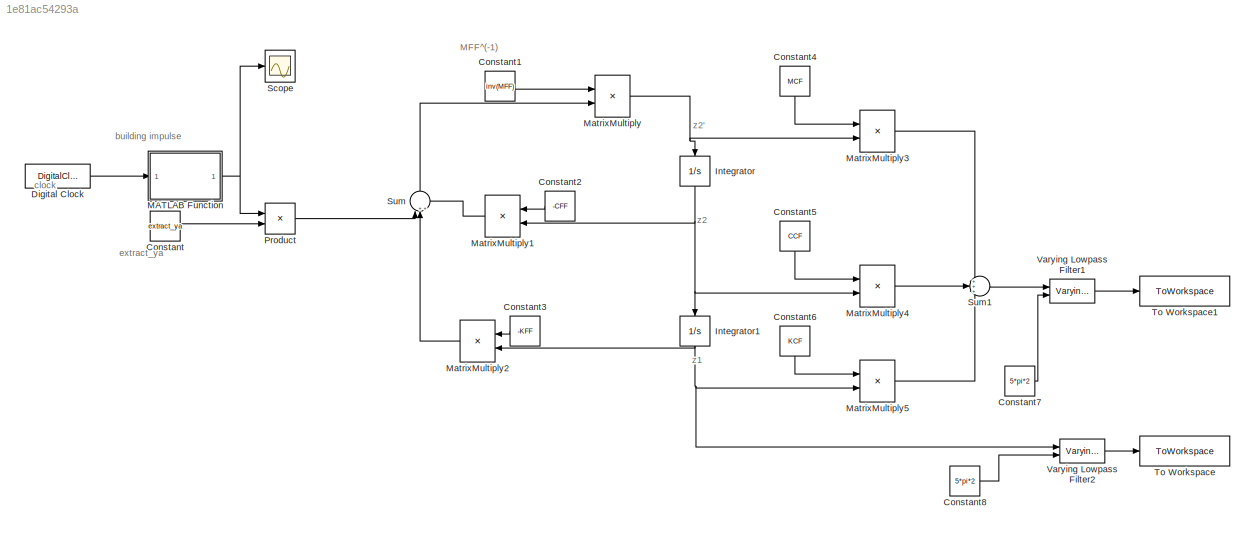
MODEL slx_1e81ac54293a
KIND model
CONFIG AbsTol = auto
CONFIG EnableMultiTasking = off
CONFIG FixedStep = auto
CONFIG MaxStep = auto
CONFIG MinStep = auto
CONFIG RelTol = 1e-3
CONFIG SampleTimeConstraint = Unconstrained
CONFIG SolverName = ode45
CONFIG StartTime = 0.0
CONFIG StopTime = 15.0
BLOCK [Constant] Constant
  Value = extract_ya
BLOCK [Constant] Constant1
  Value = inv(MFF)
BLOCK [Constant] Constant2
  NameLocation = top
  Value = -CFF
BLOCK [Constant] Constant3
  Value = -KFF
BLOCK [Constant] Constant4
  NameLocation = left
  Value = MCF
BLOCK [Constant] Constant5
  NameLocation = left
  Value = CCF
BLOCK [Constant] Constant6
  NameLocation = left
  Value = KCF
BLOCK [Constant] Constant7
  Value = 5*pi*2
BLOCK [Constant] Constant8
  Value = 5*pi*2
BLOCK [DigitalClock] Digital Clock
  SampleTime = 0.0001
BLOCK [Integrator] Integrator
  InitialCondition = zeros(ndof,1)
  NameLocation = left
  Ports = [1, 1]
BLOCK [Integrator] Integrator1
  InitialCondition = zeros(ndof,1)
  NameLocation = left
  Ports = [1, 1]
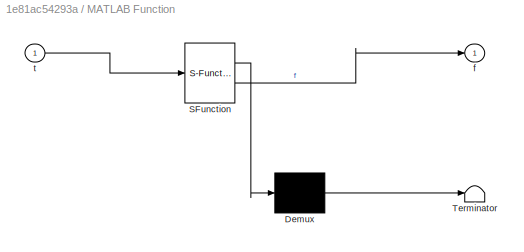
BLOCK [SubSystem] MATLAB Function
  ErrorFcn = Stateflow.Translate.translate
  PermitHierarchicalResolution = ExplicitOnly
  Ports = [1, 1]
  RequestExecContextInheritance = off
  SFBlockType = MATLAB Function
  TreatAsAtomicUnit = on
BLOCK [Demux] MATLAB Function/ Demux 
  Outputs = 1
  Ports = [1, 1]
BLOCK [S-Function] MATLAB Function/ SFunction 
  EnableBusSupport = on
  FunctionName = sf_sfun
  PortCounts = [1 2]
  Ports = [1, 2]
  SFcnIsStateOwnerBlock = off
  SFunctionDeploymentMode = off
  Tag = Stateflow S-Function 2
BLOCK [Terminator] MATLAB Function/ Terminator 
BLOCK [Outport] MATLAB Function/f
BLOCK [Inport] MATLAB Function/t
BLOCK [Product] MatrixMultiply
  Multiplication = Matrix(*)
  Ports = [2, 1]
BLOCK [Product] MatrixMultiply1
  Multiplication = Matrix(*)
  NameLocation = top
  Ports = [2, 1]
BLOCK [Product] MatrixMultiply2
  Multiplication = Matrix(*)
  NameLocation = top
  Ports = [2, 1]
BLOCK [Product] MatrixMultiply3
  Multiplication = Matrix(*)
  Ports = [2, 1]
BLOCK [Product] MatrixMultiply4
  Multiplication = Matrix(*)
  Ports = [2, 1]
BLOCK [Product] MatrixMultiply5
  Multiplication = Matrix(*)
  Ports = [2, 1]
BLOCK [Product] Product
  Ports = [2, 1]
BLOCK [Scope] Scope
  Floating = off
  NumInputPorts = 1
  Ports = [1]
  ScopeSpecificationString = Simulink.scopes.TimeScopeBlockCfg('CurrentConfiguration', extmgr.ConfigurationSet(extmgr.Configuration('Core','General UI',true),extmgr.Configuration('Core','Source UI',true),extmgr.Configuration('Sources','WiredSimulink',true),extmgr.Configuration('Visuals','Time Domain',true,'SerializedDisplays',{struct('MinYLimReal','-500.00000','MaxYLimReal','4500.00000','YLabelReal','','MinYLimMag',' 0.00000'...<+1353ch>
BLOCK [Sum] Sum
  Inputs = |+++
  NameLocation = right
  Ports = [3, 1]
BLOCK [Sum] Sum1
  Inputs = +++
  Ports = [3, 1]
BLOCK [ToWorkspace] To Workspace
  FixptAsFi = on
  MaxDataPoints = inf
  Ports = [1]
  SampleTime = -1
  VariableName = x
BLOCK [ToWorkspace] To Workspace1
  FixptAsFi = on
  MaxDataPoints = inf
  Ports = [1]
  SampleTime = -1
  VariableName = Rp
BLOCK [Reference] Varying Lowpass Filter1  REF=cstblocks/Linear Parameter Varying/Varying Lowpass Filter
  Ports = [2, 1]
  SourceBlock = cstblocks/Linear Parameter Varying/Varying Lowpass Filter
  SourceProductBaseCode = CT
  SourceType = Varying Lowpass Filter
BLOCK [Reference] Varying Lowpass Filter2  REF=cstblocks/Linear Parameter Varying/Varying Lowpass Filter
  Ports = [2, 1]
  SourceBlock = cstblocks/Linear Parameter Varying/Varying Lowpass Filter
  SourceProductBaseCode = CT
  SourceType = Varying Lowpass Filter
ANNOTATION (root): MFF^(-1)
ANNOTATION (root): building impulse
ANNOTATION (root): clock
ANNOTATION (root): extract_ya
ANNOTATION (root): z1
ANNOTATION (root): z2
ANNOTATION (root): z2'
LINE Constant1:1 -> MatrixMultiply:1
LINE Constant2:1 -> MatrixMultiply1:1
LINE Constant3:1 -> MatrixMultiply2:1
LINE Constant4:1 -> MatrixMultiply3:1
LINE Constant5:1 -> MatrixMultiply4:1
LINE Constant6:1 -> MatrixMultiply5:1
LINE Constant7:1 -> Varying Lowpass Filter1:2
LINE Constant8:1 -> Varying Lowpass Filter2:2
LINE Constant:1 -> Product:2
LINE Digital Clock:1 -> MATLAB Function:1
NET Integrator1:1 -> MatrixMultiply2:2, MatrixMultiply5:2, Varying Lowpass Filter2:1
NET Integrator:1 -> Integrator1:1, MatrixMultiply1:2, MatrixMultiply4:2
NET MATLAB Function:1 -> Product:1, Scope:1
LINE MatrixMultiply1:1 -> Sum:3
LINE MatrixMultiply2:1 -> Sum:2
LINE MatrixMultiply3:1 -> Sum1:1
LINE MatrixMultiply4:1 -> Sum1:2
LINE MatrixMultiply5:1 -> Sum1:3
NET MatrixMultiply:1 -> Integrator:1, MatrixMultiply3:2
LINE Product:1 -> Sum:1
LINE Sum1:1 -> Varying Lowpass Filter1:1
LINE Sum:1 -> MatrixMultiply:2
LINE Varying Lowpass Filter1:1 -> To Workspace1:1
LINE Varying Lowpass Filter2:1 -> To Workspace:1
note: NET lines group one-source signal fan-out (src -> all destinations, sorted); 1:1 wires keep LINE
CHART MATLAB Function states=1 transitions=1
  STATE_LABEL 'eML_blk_kernel()'
  STATE_LABEL 'SCRIPT:\nfunction f = fcn(t)\n%% Impulse (half-sine) definition\n\n\nFmax=4000;\nTi=2*0.3; % period of the half-sine function\nfi=1/Ti; % freq. of the half-sine function\nf=zeros(size(t));\nfor j=1:length(t)\n    if t(j)<=0.3\n        f(j)=Fmax*sin(2*pi*fi*t(j));\n    else\n        f(j)=0;\n    end\n   \nend\n\n'
CHART  states=0 transitions=0
